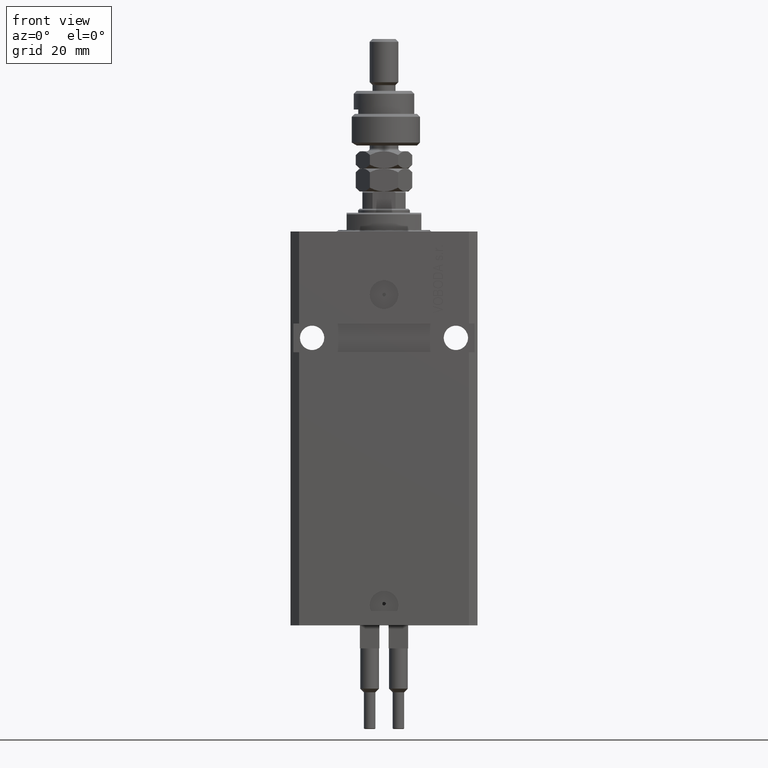
[diagram: clean part render]
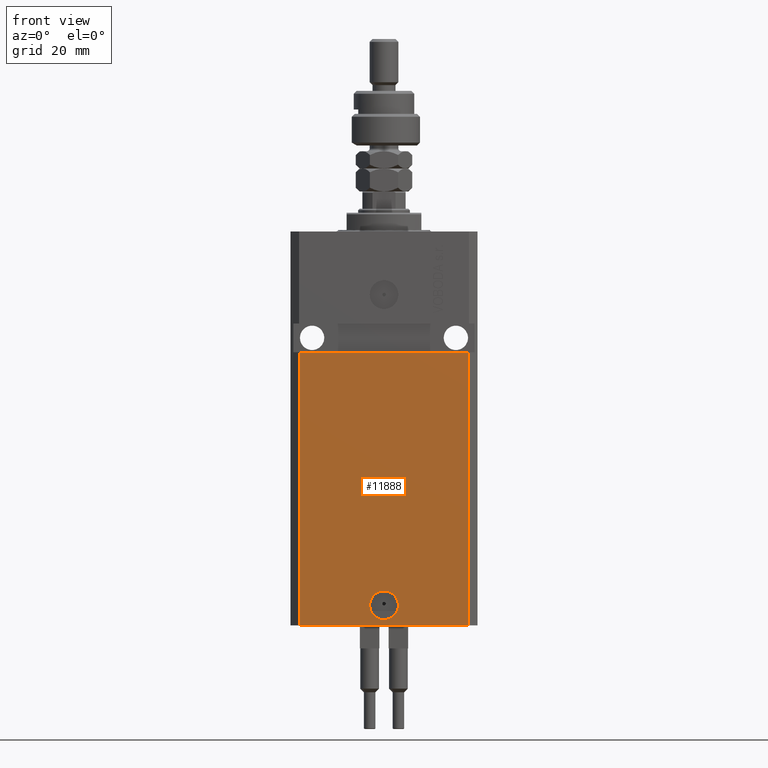
[diagram: same view with one face highlighted and labeled with its STEP entity id]
A machine part, front view. The second image highlights one B-rep face of the part: STEP entity #11888.
In plain terms, the highlighted planar face has unit normal (0, -1, 0).
Its self-contained STEP definition (entity closure, byte-faithful):
#742 = FACE_OUTER_BOUND ( 'NONE', #29562, .T. ) ;
#1583 = LINE ( 'NONE', #20538, #45330 ) ;
#1851 = CARTESIAN_POINT ( 'NONE',  ( -29.49999999999650413, -22.49999999999949907, -137.0000000000000000 ) ) ;
#2629 = VERTEX_POINT ( 'NONE', #21167 ) ;
#2901 = CARTESIAN_POINT ( 'NONE',  ( -29.49999999999650413, -22.49999999999949907, -41.99999999999999289 ) ) ;
#3870 = CARTESIAN_POINT ( 'NONE',  ( -5.000000000000003553, -22.49999999999949551, -130.0000000000000000 ) ) ;
#4133 = EDGE_CURVE ( 'NONE', #2629, #51148, #47550, .T. ) ;
#5034 = ORIENTED_EDGE ( 'NONE', *, *, #33331, .F. ) ;
#7762 = AXIS2_PLACEMENT_3D ( 'NONE', #34419, #18835, #30261 ) ;
#8274 = DIRECTION ( 'NONE',  ( 1.000000000000000000, 1.176083712526788232E-16, 0.000000000000000000 ) ) ;
#10331 = AXIS2_PLACEMENT_3D ( 'NONE', #16565, #12417, #8274 ) ;
#11716 = DIRECTION ( 'NONE',  ( 1.000000000000000000, 0.000000000000000000, 0.000000000000000000 ) ) ;
#11888 = ADVANCED_FACE ( 'NONE', ( #47982, #742 ), #50662, .T. ) ;
#12417 = DIRECTION ( 'NONE',  ( 1.176083712526788232E-16, -1.000000000000000000, 0.000000000000000000 ) ) ;
#12641 = EDGE_LOOP ( 'NONE', ( #47693, #42481 ) ) ;
#13197 = VECTOR ( 'NONE', #26124, 1000.000000000000000 ) ;
#15199 = CARTESIAN_POINT ( 'NONE',  ( 29.49999999999650413, -22.49999999999949196, -137.0000000000000000 ) ) ;
#16565 = CARTESIAN_POINT ( 'NONE',  ( -29.49999999999650413, -22.49999999999949907, -137.0000000000000000 ) ) ;
#16931 = EDGE_CURVE ( 'NONE', #50919, #45687, #1583, .T. ) ;
#17326 = CARTESIAN_POINT ( 'NONE',  ( 29.49999999999650058, -22.49999999999949196, -41.99999999999998579 ) ) ;
#18835 = DIRECTION ( 'NONE',  ( 1.176083712526788232E-16, -1.000000000000000000, 0.000000000000000000 ) ) ;
#20538 = CARTESIAN_POINT ( 'NONE',  ( -32.49999999999650413, -22.49999999999949907, -41.99999999999999289 ) ) ;
#20995 = EDGE_CURVE ( 'NONE', #21653, #33206, #37405, .T. ) ;
#21167 = CARTESIAN_POINT ( 'NONE',  ( 5.000000000000008882, -22.49999999999949551, -130.0000000000000000 ) ) ;
#21653 = VERTEX_POINT ( 'NONE', #44382 ) ;
#21698 = ORIENTED_EDGE ( 'NONE', *, *, #25346, .T. ) ;
#25346 = EDGE_CURVE ( 'NONE', #33206, #45687, #34161, .T. ) ;
#26124 = DIRECTION ( 'NONE',  ( 0.000000000000000000, 0.000000000000000000, 1.000000000000000000 ) ) ;
#28407 = ORIENTED_EDGE ( 'NONE', *, *, #20995, .T. ) ;
#29347 = DIRECTION ( 'NONE',  ( 1.000000000000000000, 1.067522139062765303E-16, 1.067522139062765303E-16 ) ) ;
#29562 = EDGE_LOOP ( 'NONE', ( #48073, #5034, #28407, #21698 ) ) ;
#29723 = VECTOR ( 'NONE', #33517, 1000.000000000000000 ) ;
#30261 = DIRECTION ( 'NONE',  ( 1.000000000000000000, 0.000000000000000000, 0.000000000000000000 ) ) ;
#30430 = CARTESIAN_POINT ( 'NONE',  ( -29.49999999999650413, -22.49999999999949907, -137.0000000000000000 ) ) ;
#31074 = EDGE_CURVE ( 'NONE', #51148, #2629, #31654, .T. ) ;
#31445 = CARTESIAN_POINT ( 'NONE',  ( 2.646188353185214061E-15, -22.49999999999949551, -130.0000000000000000 ) ) ;
#31654 = CIRCLE ( 'NONE', #39948, 5.000000000000006217 ) ;
#33206 = VERTEX_POINT ( 'NONE', #37709 ) ;
#33331 = EDGE_CURVE ( 'NONE', #21653, #50919, #46006, .T. ) ;
#33517 = DIRECTION ( 'NONE',  ( 1.000000000000000000, 1.176083712526788232E-16, 0.000000000000000000 ) ) ;
#34161 = LINE ( 'NONE', #15199, #13197 ) ;
#34419 = CARTESIAN_POINT ( 'NONE',  ( 2.646188353185214061E-15, -22.49999999999949551, -130.0000000000000000 ) ) ;
#37405 = LINE ( 'NONE', #1851, #29723 ) ;
#37538 = VECTOR ( 'NONE', #42363, 1000.000000000000000 ) ;
#37709 = CARTESIAN_POINT ( 'NONE',  ( 29.49999999999650413, -22.49999999999949196, -137.0000000000000000 ) ) ;
#39948 = AXIS2_PLACEMENT_3D ( 'NONE', #31445, #47273, #11716 ) ;
#42363 = DIRECTION ( 'NONE',  ( 0.000000000000000000, 0.000000000000000000, 1.000000000000000000 ) ) ;
#42481 = ORIENTED_EDGE ( 'NONE', *, *, #31074, .F. ) ;
#44382 = CARTESIAN_POINT ( 'NONE',  ( -29.49999999999650413, -22.49999999999949907, -137.0000000000000000 ) ) ;
#45330 = VECTOR ( 'NONE', #29347, 1000.000000000000000 ) ;
#45687 = VERTEX_POINT ( 'NONE', #17326 ) ;
#46006 = LINE ( 'NONE', #30430, #37538 ) ;
#47273 = DIRECTION ( 'NONE',  ( 1.176083712526788232E-16, -1.000000000000000000, 0.000000000000000000 ) ) ;
#47550 = CIRCLE ( 'NONE', #7762, 5.000000000000006217 ) ;
#47693 = ORIENTED_EDGE ( 'NONE', *, *, #4133, .F. ) ;
#47982 = FACE_BOUND ( 'NONE', #12641, .T. ) ;
#48073 = ORIENTED_EDGE ( 'NONE', *, *, #16931, .F. ) ;
#50662 = PLANE ( 'NONE',  #10331 ) ;
#50919 = VERTEX_POINT ( 'NONE', #2901 ) ;
#51148 = VERTEX_POINT ( 'NONE', #3870 ) ;